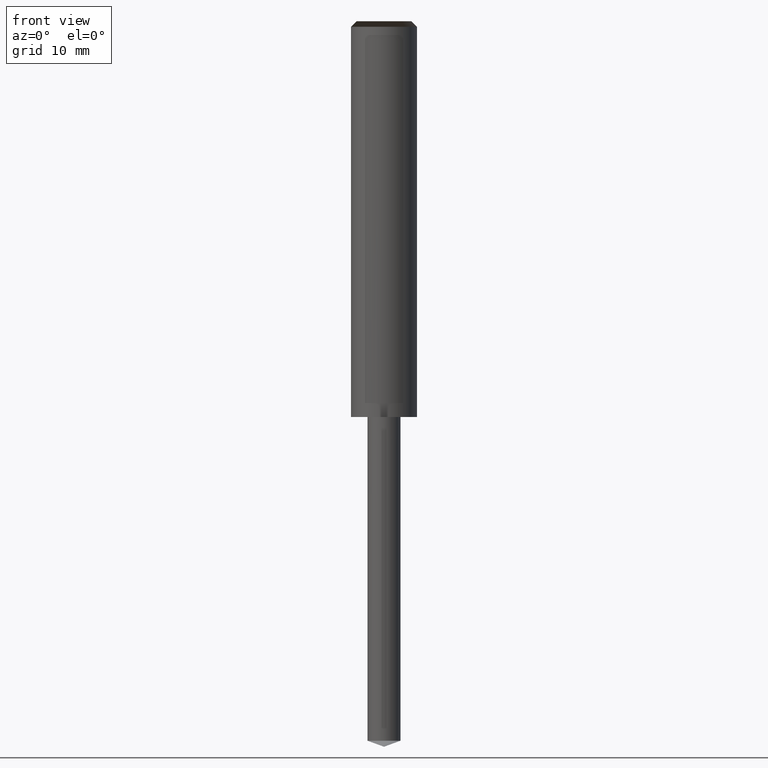
[diagram: clean part render]
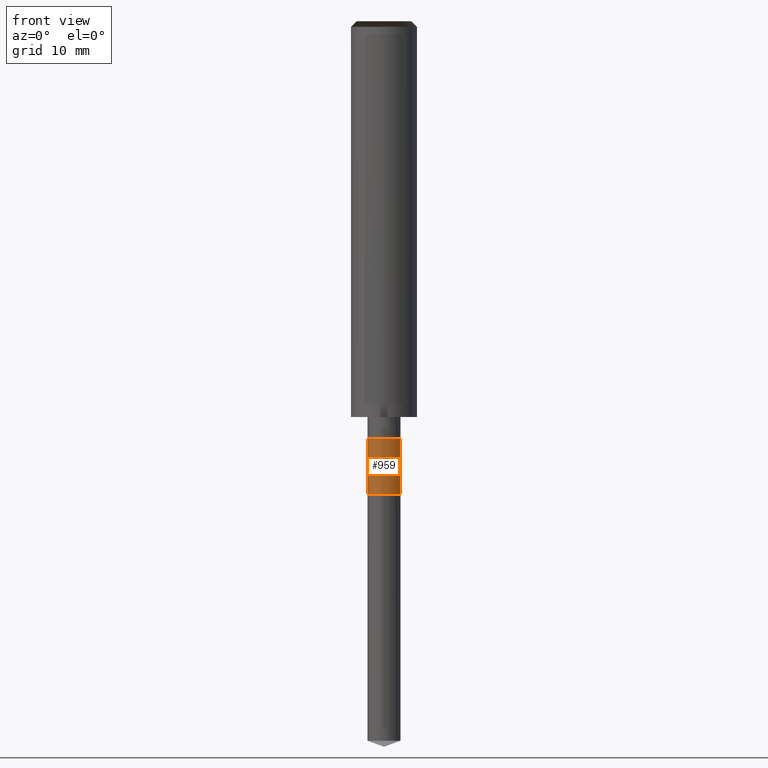
[diagram: same view with one face highlighted and labeled with its STEP entity id]
A machine part, front view. The second image highlights one B-rep face of the part: STEP entity #959.
In plain terms, the highlighted face is a freeform B-spline surface patch.
Its self-contained STEP definition (entity closure, byte-faithful):
#626=CARTESIAN_POINT('',(1.5,0.0,-7.0));
#630=CARTESIAN_POINT('',(-1.5,0.0,-7.0));
#635=CARTESIAN_POINT('',(-1.5,-1.5,-7.0));
#636=CARTESIAN_POINT('',(0.0,-1.5,-7.0));
#637=CARTESIAN_POINT('',(1.5,-1.5,-7.0));
#638=CARTESIAN_POINT('',(1.5,0.0,-2.0));
#642=CARTESIAN_POINT('',(-1.5,0.0,-2.0));
#664=CARTESIAN_POINT('',(-1.5,-1.5,-2.0));
#665=CARTESIAN_POINT('',(0.0,-1.5,-2.0));
#666=CARTESIAN_POINT('',(1.5,-1.5,-2.0));
#940=(
BOUNDED_SURFACE()
B_SPLINE_SURFACE(1,2,(
(#630,#635,#636,#637,#626),
(#642,#664,#665,#666,#638)
), .UNSPECIFIED.,.F.,.F.,.F.)
B_SPLINE_SURFACE_WITH_KNOTS((2,2),(3,2,3),(
0.0,1.0),(
0.0,0.5,1.0), .UNSPECIFIED.)
GEOMETRIC_REPRESENTATION_ITEM()
RATIONAL_B_SPLINE_SURFACE(((1.0,0.707106781187,1.0,0.707106781187,1.0),
(1.0,0.707106781187,1.0,0.707106781187,1.0)
))
REPRESENTATION_ITEM('')
SURFACE()
);
#941=(
BOUNDED_CURVE()
B_SPLINE_CURVE(2,(#626,#637,#636,#635,#630),.UNSPECIFIED.,.F.,.F.)
B_SPLINE_CURVE_WITH_KNOTS((3,2,3),
(0.0,0.5,1.0),.UNSPECIFIED.)
CURVE()
GEOMETRIC_REPRESENTATION_ITEM()
RATIONAL_B_SPLINE_CURVE((1.0,0.707106781187,1.0,0.707106781187,1.0))
REPRESENTATION_ITEM('')
);
#942=(
BOUNDED_CURVE()
B_SPLINE_CURVE(1,(#630,#642),.UNSPECIFIED.,.F.,.F.)
B_SPLINE_CURVE_WITH_KNOTS((2,2),
(0.0,1.0),.UNSPECIFIED.)
CURVE()
GEOMETRIC_REPRESENTATION_ITEM()
RATIONAL_B_SPLINE_CURVE((1.0,1.0))
REPRESENTATION_ITEM('')
);
#943=(
BOUNDED_CURVE()
B_SPLINE_CURVE(2,(#642,#664,#665,#666,#638),.UNSPECIFIED.,.F.,.F.)
B_SPLINE_CURVE_WITH_KNOTS((3,2,3),
(0.0,0.5,1.0),.UNSPECIFIED.)
CURVE()
GEOMETRIC_REPRESENTATION_ITEM()
RATIONAL_B_SPLINE_CURVE((1.0,0.707106781187,1.0,0.707106781187,1.0))
REPRESENTATION_ITEM('')
);
#944=(
BOUNDED_CURVE()
B_SPLINE_CURVE(1,(#638,#626),.UNSPECIFIED.,.F.,.F.)
B_SPLINE_CURVE_WITH_KNOTS((2,2),
(0.0,1.0),.UNSPECIFIED.)
CURVE()
GEOMETRIC_REPRESENTATION_ITEM()
RATIONAL_B_SPLINE_CURVE((1.0,1.0))
REPRESENTATION_ITEM('')
);
#945=VERTEX_POINT('',#626);
#946=VERTEX_POINT('',#630);
#947=VERTEX_POINT('',#638);
#948=VERTEX_POINT('',#642);
#949=EDGE_CURVE('',#945,#946,#941,.T.);
#950=EDGE_CURVE('',#946,#948,#942,.T.);
#951=EDGE_CURVE('',#948,#947,#943,.T.);
#952=EDGE_CURVE('',#947,#945,#944,.T.);
#953=ORIENTED_EDGE('',*,*,#949,.T.);
#954=ORIENTED_EDGE('',*,*,#950,.T.);
#955=ORIENTED_EDGE('',*,*,#951,.T.);
#956=ORIENTED_EDGE('',*,*,#952,.T.);
#957=EDGE_LOOP('',(#953,#954,#955,#956));
#958=FACE_OUTER_BOUND('',#957,.T.);
#959=ADVANCED_FACE('',(#958),#940,.T.);